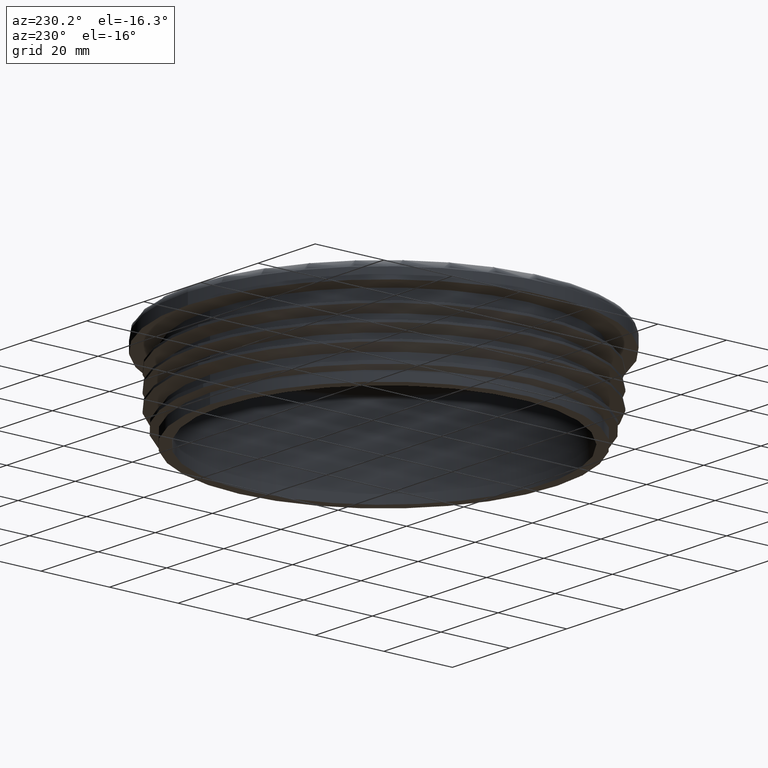
[diagram: clean part render]
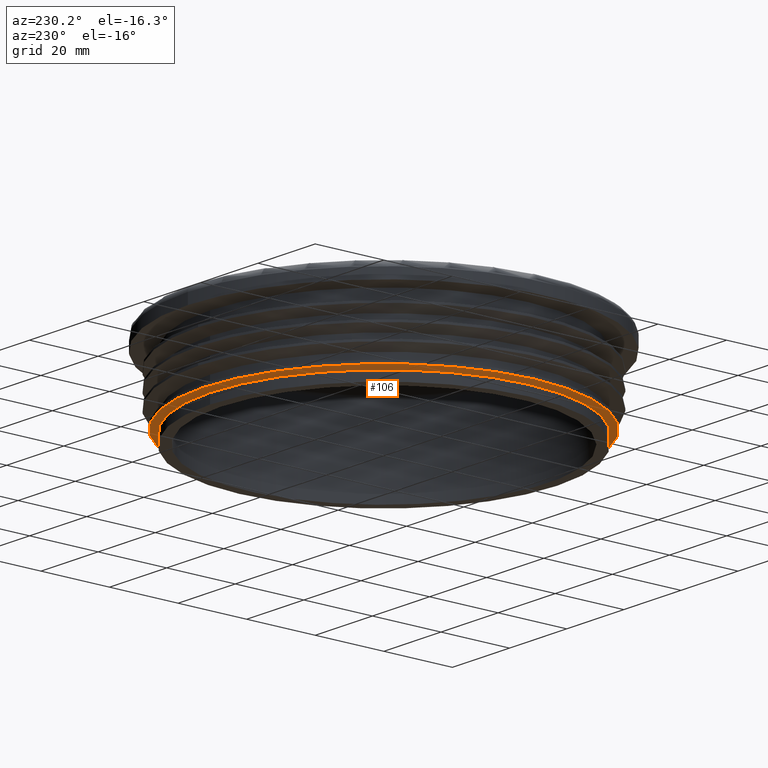
[diagram: same view with one face highlighted and labeled with its STEP entity id]
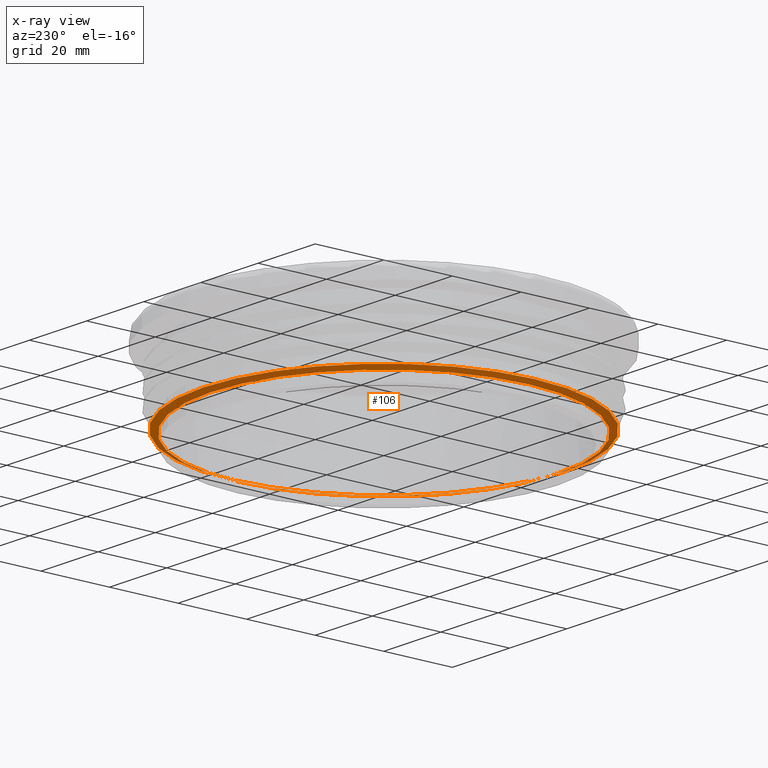
[diagram: x-ray of the same camera — body ghosted, the highlighted face saturated]
A machine part, auxiliary view. The second image highlights one B-rep face of the part: STEP entity #106.
The next image is the same camera in x-ray: the body ghosted, the highlighted face saturated — about 0% of this face is hidden behind the body in this view.
In plain terms, the highlighted conical surface has half-angle 68 deg.
Its self-contained STEP definition (entity closure, byte-faithful):
#106 = ADVANCED_FACE( '', ( #270, #271 ), #272, .T. );
#270 = FACE_BOUND( '', #614, .T. );
#271 = FACE_OUTER_BOUND( '', #615, .T. );
#272 = CONICAL_SURFACE( '', #616, 52.6500000000000, 1.18682389135614 );
#614 = EDGE_LOOP( '', ( #1227 ) );
#615 = EDGE_LOOP( '', ( #1228 ) );
#616 = AXIS2_PLACEMENT_3D( '', #1229, #1230, #1231 );
#1227 = ORIENTED_EDGE( '', *, *, #1813, .F. );
#1228 = ORIENTED_EDGE( '', *, *, #1812, .T. );
#1229 = CARTESIAN_POINT( '', ( 0.000000000000000, -1.12614479134262E-015, 3.60805245167031 ) );
#1230 = DIRECTION( '', ( 0.000000000000000, 6.12303176911189E-017, 1.00000000000000 ) );
#1231 = DIRECTION( '', ( 0.000000000000000, -1.00000000000000, 6.12303176911189E-017 ) );
#1812 = EDGE_CURVE( '', #2136, #2136, #2137, .T. );
#1813 = EDGE_CURVE( '', #2138, #2138, #2139, .T. );
#2136 = VERTEX_POINT( '', #3266 );
#2137 = CIRCLE( '', #3267, 52.6500000000000 );
#2138 = VERTEX_POINT( '', #3268 );
#2139 = CIRCLE( '', #3269, 50.6500000000000 );
#3266 = CARTESIAN_POINT( '', ( 0.000000000000000, 52.6500000000000, 3.60805245167031 ) );
#3267 = AXIS2_PLACEMENT_3D( '', #3760, #3761, #3762 );
#3268 = CARTESIAN_POINT( '', ( 0.000000000000000, 50.6500000000000, 2.79999999999998 ) );
#3269 = AXIS2_PLACEMENT_3D( '', #3763, #3764, #3765 );
#3760 = CARTESIAN_POINT( '', ( 0.000000000000000, -1.12614479134262E-015, 3.60805245167031 ) );
#3761 = DIRECTION( '', ( 0.000000000000000, -6.12303176911189E-017, -1.00000000000000 ) );
#3762 = DIRECTION( '', ( 0.000000000000000, 1.00000000000000, -6.12303176911189E-017 ) );
#3763 = CARTESIAN_POINT( '', ( 0.000000000000000, -1.17562209966948E-015, 2.79999999999999 ) );
#3764 = DIRECTION( '', ( 0.000000000000000, -6.12303176911189E-017, -1.00000000000000 ) );
#3765 = DIRECTION( '', ( 0.000000000000000, 1.00000000000000, -6.12303176911189E-017 ) );